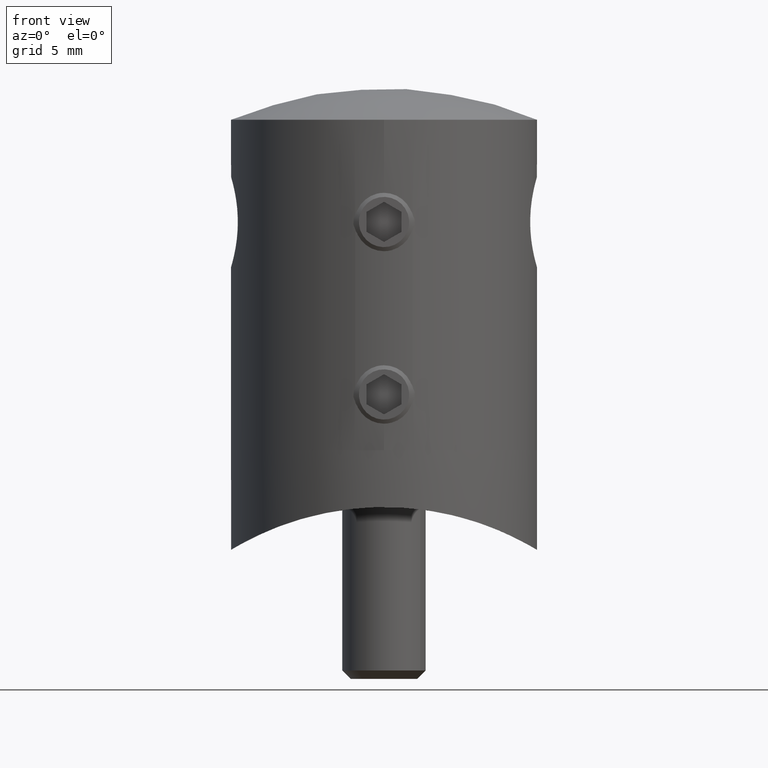
[diagram: clean part render]
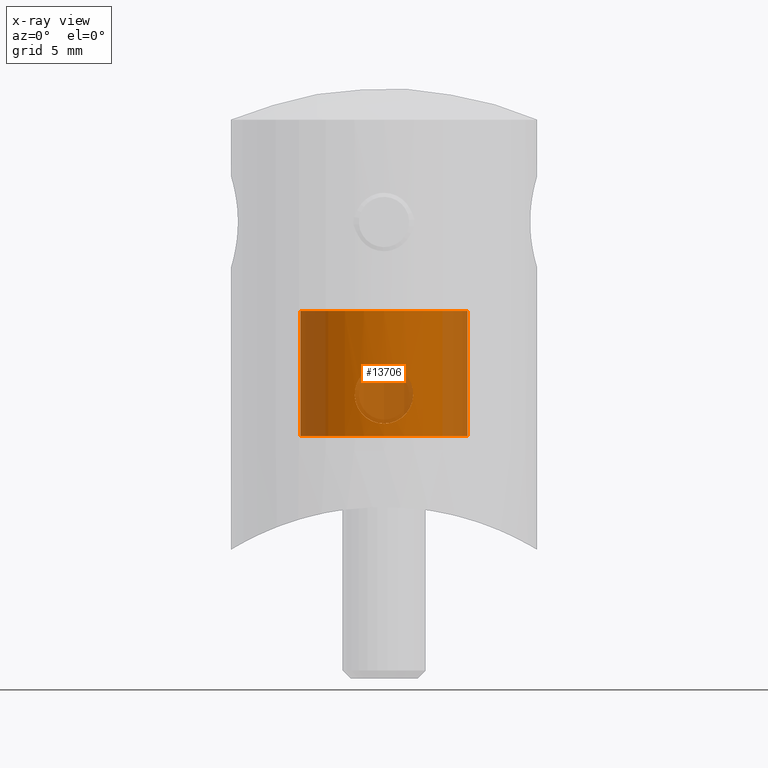
[diagram: x-ray — body ghosted, one internal face saturated and labeled with its STEP entity id]
A machine part, front view, then the same camera in x-ray: the body is ghosted and one INTERNAL B-rep face — a face not visible from any outside direction — is saturated and labeled: STEP entity #13706.
In plain terms, the highlighted cylindrical surface (bore or boss wall) has radius 6.05 mm, axis along (0, 0, -1).
Its self-contained STEP definition (entity closure, byte-faithful):
#210 = CIRCLE ( 'NONE', #5325, 6.050000000000000711 ) ;
#756 = CARTESIAN_POINT ( 'NONE',  ( -1.679013435041563085, -5.815794899478619939, -7.709183467151893510 ) ) ;
#828 = DIRECTION ( 'NONE',  ( 0.000000000000000000, -1.000000000000000000, 0.000000000000000000 ) ) ;
#869 = CARTESIAN_POINT ( 'NONE',  ( 2.086199626509825489, -5.679005098974669430, -8.722931967104218032 ) ) ;
#938 = CARTESIAN_POINT ( 'NONE',  ( 1.389485210169927321, -5.889112003224027170, -10.58043694724463357 ) ) ;
#997 = CARTESIAN_POINT ( 'NONE',  ( 1.283353766588672729, -5.913447706495243317, -7.332171301390130402 ) ) ;
#1237 = CARTESIAN_POINT ( 'NONE',  ( -0.2772861503185984344, -6.045152451168054775, -11.08614745265201762 ) ) ;
#1295 = CARTESIAN_POINT ( 'NONE',  ( -1.677628477259460515, -5.816140520493007671, -10.29216412684446702 ) ) ;
#2188 = CARTESIAN_POINT ( 'NONE',  ( -2.100002776509584113, -5.673842466852675237, -8.861644933711625427 ) ) ;
#2260 = CARTESIAN_POINT ( 'NONE',  ( 1.669091256392895239, -5.815745814966070348, -7.718326810072279720 ) ) ;
#2370 = CARTESIAN_POINT ( 'NONE',  ( 0.5499007699519290471, -6.026500863612104020, -6.968529175330919756 ) ) ;
#2440 = CARTESIAN_POINT ( 'NONE',  ( -0.1399094874859273530, -6.049999999999998934, -11.09999999999999787 ) ) ;
#2563 = ORIENTED_EDGE ( 'NONE', *, *, #13546, .F. ) ;
#2722 = CARTESIAN_POINT ( 'NONE',  ( 0.000000000000000000, -6.049999999999999822, -12.00000000000001243 ) ) ;
#3101 = AXIS2_PLACEMENT_3D ( 'NONE', #6032, #9111, #828 ) ;
#3508 = CARTESIAN_POINT ( 'NONE',  ( 0.5471799696909567245, -6.026723109777710974, -11.03212607876413465 ) ) ;
#3567 = CARTESIAN_POINT ( 'NONE',  ( -2.086446433802004563, -5.678914961500180603, -9.275580519989469863 ) ) ;
#3618 = CARTESIAN_POINT ( 'NONE',  ( 2.086298412965085891, -5.678969576372753458, -9.276648808254051914 ) ) ;
#3747 = CARTESIAN_POINT ( 'NONE',  ( 0.1386168427396119451, -6.049981620882074473, -6.900052949366974886 ) ) ;
#4335 = ORIENTED_EDGE ( 'NONE', *, *, #10456, .T. ) ;
#4631 = EDGE_CURVE ( 'NONE', #12431, #12431, #9236, .T. ) ;
#4864 = CARTESIAN_POINT ( 'NONE',  ( -0.5484315143079885324, -6.026637946847929861, -6.968123526063984663 ) ) ;
#4926 = CARTESIAN_POINT ( 'NONE',  ( 1.833375222520310599, -5.766588150094817067, -10.05988853332625332 ) ) ;
#4958 = DIRECTION ( 'NONE',  ( 0.000000000000000000, 1.000000000000000000, 1.433655765270088355E-16 ) ) ;
#4995 = CARTESIAN_POINT ( 'NONE',  ( 1.677515665356957619, -5.816156680805213419, -10.29218480352837695 ) ) ;
#5057 = CARTESIAN_POINT ( 'NONE',  ( 1.820668057691347430, -5.770089499320176785, -7.944670851511660636 ) ) ;
#5103 = CARTESIAN_POINT ( 'NONE',  ( -0.1370078424113408966, -6.050018272139330300, -6.899947358833300015 ) ) ;
#5325 = AXIS2_PLACEMENT_3D ( 'NONE', #12947, #11782, #4958 ) ;
#5358 = ORIENTED_EDGE ( 'NONE', *, *, #4631, .T. ) ;
#6032 = CARTESIAN_POINT ( 'NONE',  ( 0.000000000000000000, -1.221035599223777406E-16, -12.00000000000001243 ) ) ;
#6217 = CARTESIAN_POINT ( 'NONE',  ( 0.000000000000000000, 0.000000000000000000, -13.00000000000000178 ) ) ;
#6250 = CARTESIAN_POINT ( 'NONE',  ( -1.387985884028859696, -5.889482939333429812, -7.418128151566114603 ) ) ;
#6284 = CYLINDRICAL_SURFACE ( 'NONE', #8069, 6.049999999999999822 ) ;
#6375 = CARTESIAN_POINT ( 'NONE',  ( -2.846030702774449139E-16, -6.049999999999999822, -11.09999999999999787 ) ) ;
#6497 = CARTESIAN_POINT ( 'NONE',  ( -0.9334016992415116176, -5.978932021175665135, -7.113834740860747630 ) ) ;
#6666 = CARTESIAN_POINT ( 'NONE',  ( -0.9348990817558912036, -5.978705317257419161, -10.88545226405776489 ) ) ;
#7529 = VERTEX_POINT ( 'NONE', #16042 ) ;
#7618 = CARTESIAN_POINT ( 'NONE',  ( -0.6798199956223249796, -6.013045120364453489, -7.008341673257475257 ) ) ;
#7667 = CARTESIAN_POINT ( 'NONE',  ( 1.992076325838970208, -5.712904946180972665, -8.321180947084144464 ) ) ;
#7807 = CARTESIAN_POINT ( 'NONE',  ( 0.9350300702962209831, -5.978680807457250168, -10.88537320744207904 ) ) ;
#8069 = AXIS2_PLACEMENT_3D ( 'NONE', #6217, #14413, #13129 ) ;
#8914 = CARTESIAN_POINT ( 'NONE',  ( -1.282838274904412490, -5.913557712218290519, -7.331785559734434798 ) ) ;
#8966 = CARTESIAN_POINT ( 'NONE',  ( -2.085968176298856669, -5.679090304225507424, -8.721325616715200013 ) ) ;
#9039 = CARTESIAN_POINT ( 'NONE',  ( 2.032092219697879010, -5.698590089353100296, -8.452645647550122376 ) ) ;
#9111 = DIRECTION ( 'NONE',  ( 0.000000000000000000, 1.221035599223791951E-16, -1.000000000000000000 ) ) ;
#9140 = CARTESIAN_POINT ( 'NONE',  ( 2.031906570704638870, -5.698657052783162591, -9.548207368589965327 ) ) ;
#9236 = CIRCLE ( 'NONE', #3101, 6.049999999999999822 ) ;
#9273 = CARTESIAN_POINT ( 'NONE',  ( -1.054968530237155866, -5.958429929104765321, -10.82089231973254329 ) ) ;
#9490 = CARTESIAN_POINT ( 'NONE',  ( 0.000000000000000000, -6.049999999999999822, -11.09999999999999609 ) ) ;
#10265 = CARTESIAN_POINT ( 'NONE',  ( 0.6811580974801476618, -6.012896895511600448, -10.99121495824429040 ) ) ;
#10338 = CARTESIAN_POINT ( 'NONE',  ( 1.056540751299541947, -5.958152591912580398, -7.180007939861434707 ) ) ;
#10383 = CARTESIAN_POINT ( 'NONE',  ( 2.099901838711680124, -5.673879825887594208, -9.139667955912132769 ) ) ;
#10441 = CARTESIAN_POINT ( 'NONE',  ( 2.100097112875726868, -5.673807551136180294, -8.863299646582754932 ) ) ;
#10456 = EDGE_CURVE ( 'NONE', #10725, #10725, #16294, .T. ) ;
#10505 = CARTESIAN_POINT ( 'NONE',  ( 0.6809899078971618502, -6.012903857969324584, -7.008770919710036296 ) ) ;
#10725 = VERTEX_POINT ( 'NONE', #9490 ) ;
#10744 = FACE_BOUND ( 'NONE', #15948, .T. ) ;
#11674 = CARTESIAN_POINT ( 'NONE',  ( -2.099997222644936823, -5.673844522446161776, -9.138439339059265976 ) ) ;
#11782 = DIRECTION ( 'NONE',  ( -0.000000000000000000, 1.221035599223791951E-16, -1.000000000000000000 ) ) ;
#11813 = CARTESIAN_POINT ( 'NONE',  ( 1.990986049021030047, -5.713278432952918706, -9.681638947691940444 ) ) ;
#11864 = CARTESIAN_POINT ( 'NONE',  ( 0.2777502533098673565, -6.045159907950944600, -6.913826621524063576 ) ) ;
#11897 = EDGE_LOOP ( 'NONE', ( #5358 ) ) ;
#11921 = CARTESIAN_POINT ( 'NONE',  ( -2.846030702774449139E-16, -6.049999999999999822, -11.09999999999999787 ) ) ;
#12163 = CARTESIAN_POINT ( 'NONE',  ( -1.388895160922097416, -5.889255232830834963, -10.58098121164392147 ) ) ;
#12431 = VERTEX_POINT ( 'NONE', #2722 ) ;
#12947 = CARTESIAN_POINT ( 'NONE',  ( 0.000000000000000000, -1.221035599223792050E-15, -3.000000000000000888 ) ) ;
#13047 = CARTESIAN_POINT ( 'NONE',  ( -2.032141678610742019, -5.698572984452232149, -9.547360523033843194 ) ) ;
#13129 = DIRECTION ( 'NONE',  ( 0.000000000000000000, 1.000000000000000000, 0.000000000000000000 ) ) ;
#13214 = CARTESIAN_POINT ( 'NONE',  ( 0.1399094874859282966, -6.050000000000001599, -11.09999999999999787 ) ) ;
#13281 = CARTESIAN_POINT ( 'NONE',  ( -1.281667734744786236, -5.913812107055512968, -10.66911211653557601 ) ) ;
#13546 = EDGE_CURVE ( 'NONE', #7529, #7529, #210, .T. ) ;
#13706 = ADVANCED_FACE ( 'NONE', ( #10744, #16748, #16335 ), #6284, .F. ) ;
#13724 = EDGE_LOOP ( 'NONE', ( #2563 ) ) ;
#14342 = CARTESIAN_POINT ( 'NONE',  ( 1.885730099252477254, -5.748884500913227669, -8.065556107974956035 ) ) ;
#14385 = CARTESIAN_POINT ( 'NONE',  ( 1.581308756655631864, -5.840537573381246794, -7.611440555362619875 ) ) ;
#14413 = DIRECTION ( 'NONE',  ( -0.000000000000000000, 1.221035599223791951E-16, -1.000000000000000000 ) ) ;
#14446 = CARTESIAN_POINT ( 'NONE',  ( -0.2759941719176380870, -6.045243525726740508, -6.913585288518047989 ) ) ;
#14579 = CARTESIAN_POINT ( 'NONE',  ( 1.055254178886850136, -5.958387006382904083, -10.82076416189327794 ) ) ;
#14627 = CARTESIAN_POINT ( 'NONE',  ( -0.5468863765269961208, -6.026746307767635535, -11.03219440372573956 ) ) ;
#14765 = CARTESIAN_POINT ( 'NONE',  ( -1.991284098162775074, -5.713175649488976049, -9.680838702918435956 ) ) ;
#15697 = CARTESIAN_POINT ( 'NONE',  ( -1.832674874622926442, -5.766831447283050416, -7.938154285827224044 ) ) ;
#15762 = CARTESIAN_POINT ( 'NONE',  ( -1.056207286875700424, -5.958209884054677552, -7.179824287212644762 ) ) ;
#15831 = CARTESIAN_POINT ( 'NONE',  ( 0.2772732166670282550, -6.045156484697385757, -11.08615960140718570 ) ) ;
#15933 = CARTESIAN_POINT ( 'NONE',  ( 1.388236100762571201, -5.889415680565724287, -7.418407371126505723 ) ) ;
#15948 = EDGE_LOOP ( 'NONE', ( #4335 ) ) ;
#15998 = CARTESIAN_POINT ( 'NONE',  ( -0.6806531321449275085, -6.012958080460188093, -10.99140097589859444 ) ) ;
#16042 = CARTESIAN_POINT ( 'NONE',  ( 0.000000000000000000, 6.049999999999999822, -3.000000000000000000 ) ) ;
#16294 = B_SPLINE_CURVE_WITH_KNOTS ( 'NONE', 3,
 ( #6375, #13214, #15831, #3508, #10265, #7807, #14579, #17245, #938, #4995, #4926, #11813, #9140, #3618, #10383, #10441, #869, #9039, #7667, #14342, #5057, #2260, #14385, #15933, #997, #10338, #16997, #10505, #2370, #11864, #3747, #5103, #14446, #4864, #7618, #6497, #15762, #8914, #6250, #756, #15697, #17128, #17065, #8966, #2188, #11674, #3567, #13047, #14765, #17481, #1295, #12163, #13281, #9273, #6666, #15998, #14627, #1237, #2440, #11921 ),
 .UNSPECIFIED., .T., .F.,
 ( 4, 2, 2, 2, 2, 2, 2, 2, 2, 2, 2, 2, 2, 2, 2, 2, 2, 2, 2, 2, 2, 2, 2, 2, 2, 2, 2, 2, 2, 4 ),
 ( 0.000000000000000000, 0.0004135417857046661677, 0.0008270835714093323354, 0.001240625357113998503, 0.001654167142818664671, 0.002481250714227997006, 0.002894792499932662740, 0.003308334285637328474, 0.003721876071341993775, 0.004135417857046659075, 0.004548959642751324375, 0.004962501428455987941, 0.005376043214160651507, 0.005789584999865314205, 0.006203126785569977771, 0.006616668571274640469, 0.007030210356979304034, 0.007443752142683966733, 0.007857293928388629431, 0.008270835714093293864, 0.009097919285502620995, 0.009511461071207285428, 0.009925002856911949861, 0.01033854464261661603, 0.01075208642832128046, 0.01157916999973060933, 0.01199271178543527550, 0.01240625357113993993, 0.01281979535684460436, 0.01323333714254926706 ),
 .UNSPECIFIED. ) ;
#16335 = FACE_OUTER_BOUND ( 'NONE', #13724, .T. ) ;
#16748 = FACE_OUTER_BOUND ( 'NONE', #11897, .T. ) ;
#16997 = CARTESIAN_POINT ( 'NONE',  ( 0.9337387309442389816, -5.978870465411910473, -7.114032744933029839 ) ) ;
#17065 = CARTESIAN_POINT ( 'NONE',  ( -2.031790601906988236, -5.698697821966189458, -8.451593586440516503 ) ) ;
#17128 = CARTESIAN_POINT ( 'NONE',  ( -1.991803295099964233, -5.712998789426672275, -8.320461176367230038 ) ) ;
#17245 = CARTESIAN_POINT ( 'NONE',  ( 1.282722272704272193, -5.913591182268109314, -10.66834261661130689 ) ) ;
#17481 = CARTESIAN_POINT ( 'NONE',  ( -1.833356115717839074, -5.766598546717018436, -10.06010383873960734 ) ) ;